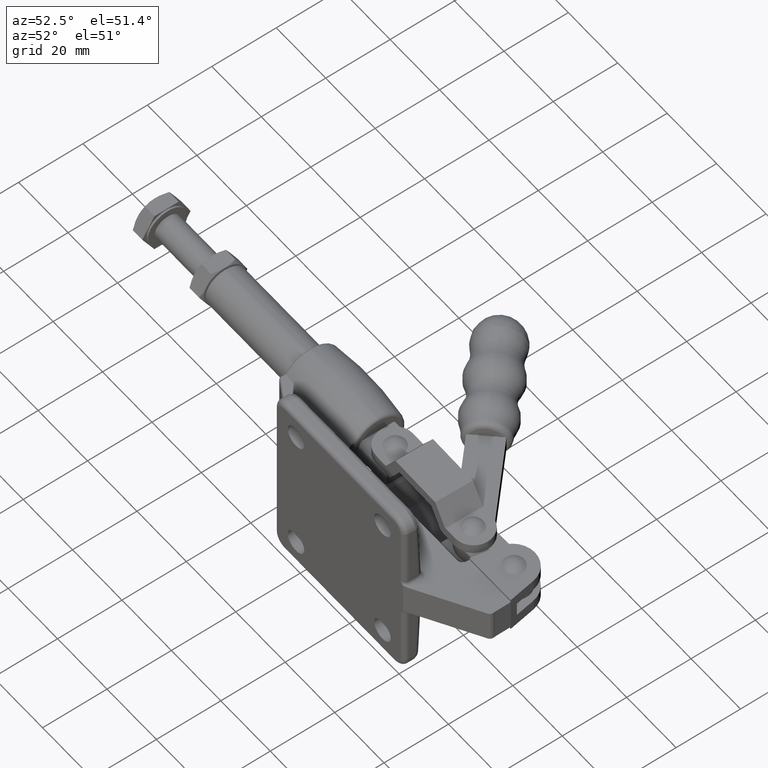
[diagram: clean part render]
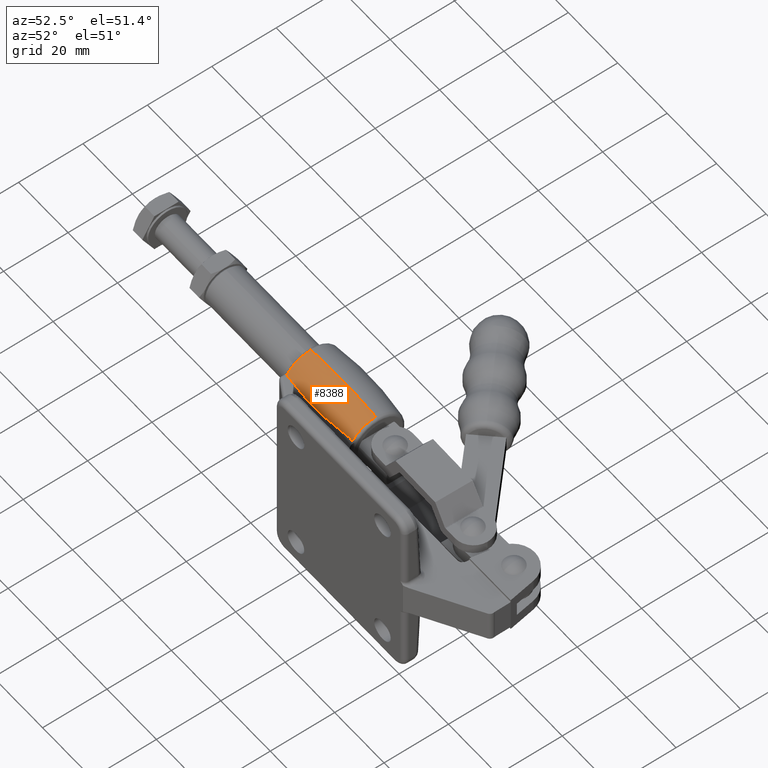
[diagram: same view with one face highlighted and labeled with its STEP entity id]
A machine part, auxiliary view. The second image highlights one B-rep face of the part: STEP entity #8388.
In plain terms, the highlighted toroidal blend (fillet) surface has major radius 88.7704 mm and minor (blend) radius 98.5 mm.
Its self-contained STEP definition (entity closure, byte-faithful):
#109 = CARTESIAN_POINT ( 'NONE',  ( -62.45293712422170500, 25.40000000000009100, 8.658596408788014300 ) ) ;
#165 = EDGE_CURVE ( 'NONE', #2297, #4744, #2657, .T. ) ;
#386 = CARTESIAN_POINT ( 'NONE',  ( -84.49775669716214600, 17.30667740680014100, 4.900000000000118500 ) ) ;
#387 = DIRECTION ( 'NONE',  ( 0.0000000000000000000, 0.0000000000000000000, -1.000000000000000000 ) ) ;
#417 = EDGE_LOOP ( 'NONE', ( #6102, #5233, #7738, #9531, #7642, #4483 ) ) ;
#619 = EDGE_CURVE ( 'NONE', #4744, #7416, #5003, .T. ) ;
#740 = DIRECTION ( 'NONE',  ( -1.000000000000000000, 0.0000000000000000000, 0.0000000000000000000 ) ) ;
#946 = VERTEX_POINT ( 'NONE', #3553 ) ;
#1133 = CARTESIAN_POINT ( 'NONE',  ( -66.00464659144114400, 17.68025265934020500, 4.900000000000118500 ) ) ;
#1161 = CARTESIAN_POINT ( 'NONE',  ( -88.60000000000020700, 17.80694003602905400, 4.900000000000119400 ) ) ;
#1257 = EDGE_CURVE ( 'NONE', #2297, #946, #4550, .T. ) ;
#1279 = CARTESIAN_POINT ( 'NONE',  ( -88.63975539190462900, 17.81258127420639400, 4.900000000000170000 ) ) ;
#1442 = DIRECTION ( 'NONE',  ( -1.000000000000000000, 0.0000000000000000000, 0.0000000000000000000 ) ) ;
#1816 = AXIS2_PLACEMENT_3D ( 'NONE', #2902, #7851, #387 ) ;
#2297 = VERTEX_POINT ( 'NONE', #4044 ) ;
#2617 = CARTESIAN_POINT ( 'NONE',  ( -62.96546490074217700, 18.00000000000000700, 4.639170850208137700 ) ) ;
#2632 = CARTESIAN_POINT ( 'NONE',  ( -68.02987524972044800, 17.43967929843386200, 4.900000000000117600 ) ) ;
#2657 = CIRCLE ( 'NONE', #4915, 8.658596408787921900 ) ;
#2806 = EDGE_CURVE ( 'NONE', #946, #4126, #4678, .T. ) ;
#2902 = CARTESIAN_POINT ( 'NONE',  ( -76.93863038838921400, 25.40000000000009100, -88.77042745297970300 ) ) ;
#3113 = DIRECTION ( 'NONE',  ( -1.000000000000000000, 0.0000000000000000000, 0.0000000000000000000 ) ) ;
#3301 = CARTESIAN_POINT ( 'NONE',  ( -63.99365595569698700, 18.00000000000000700, 4.900000000000119400 ) ) ;
#3358 = CIRCLE ( 'NONE', #4815, 9.022510358537305200 ) ;
#3380 = CARTESIAN_POINT ( 'NONE',  ( -63.47906055812428900, 18.00000000000000000, 4.773749305226592000 ) ) ;
#3390 = CARTESIAN_POINT ( 'NONE',  ( -72.11054077988649200, 17.12544940754015600, 4.900000000000120300 ) ) ;
#3509 = CARTESIAN_POINT ( 'NONE',  ( -88.67982188263897600, 17.81675682464417700, 4.897614136720157800 ) ) ;
#3553 = CARTESIAN_POINT ( 'NONE',  ( -63.99365595569698700, 18.00000000000000700, 4.900000000000119400 ) ) ;
#4044 = CARTESIAN_POINT ( 'NONE',  ( -62.45293712422170500, 18.00000000000201400, 4.495697028304231700 ) ) ;
#4126 = VERTEX_POINT ( 'NONE', #9511 ) ;
#4141 = CARTESIAN_POINT ( 'NONE',  ( -75.18399067522878500, 17.00611838970275300, 4.900000000000118500 ) ) ;
#4403 = B_SPLINE_CURVE_WITH_KNOTS ( 'NONE', 3,
 ( #8706, #3509, #1279, #6522 ),
 .UNSPECIFIED., .F., .F.,
 ( 4, 4 ),
 ( 0.0000000000000000000, 0.0001204609180723921200 ),
 .UNSPECIFIED. ) ;
#4483 = ORIENTED_EDGE ( 'NONE', *, *, #1257, .F. ) ;
#4550 = B_SPLINE_CURVE_WITH_KNOTS ( 'NONE', 3,
 ( #5542, #8220, #2617, #3380, #6355, #7100 ),
 .UNSPECIFIED., .F., .F.,
 ( 4, 2, 4 ),
 ( 0.008595698450605886500, 0.009399287032505554800, 0.01020287561440522300 ),
 .UNSPECIFIED. ) ;
#4678 = B_SPLINE_CURVE_WITH_KNOTS ( 'NONE', 3,
 ( #3301, #1133, #2632, #7850, #3390, #8587, #4141, #9328, #4910, #386, #5662, #1161 ),
 .UNSPECIFIED., .F., .F.,
 ( 4, 2, 2, 2, 2, 4 ),
 ( 0.1193302356728853900, 0.1255279190293825400, 0.1286267607076311000, 0.1317256023858796600, 0.1379232857423767800, 0.1441209690988738700 ),
 .UNSPECIFIED. ) ;
#4744 = VERTEX_POINT ( 'NONE', #109 ) ;
#4815 = AXIS2_PLACEMENT_3D ( 'NONE', #5245, #740, #5992 ) ;
#4910 = CARTESIAN_POINT ( 'NONE',  ( -80.37198244727459000, 17.03830809773745300, 4.900000000000120300 ) ) ;
#4915 = AXIS2_PLACEMENT_3D ( 'NONE', #6685, #1442, #5931 ) ;
#5003 = CIRCLE ( 'NONE', #1816, 98.50000000000221700 ) ;
#5233 = ORIENTED_EDGE ( 'NONE', *, *, #619, .T. ) ;
#5245 = CARTESIAN_POINT ( 'NONE',  ( -88.71960293708666300, 25.40000000000009100, 0.0000000000000000000 ) ) ;
#5501 = FACE_OUTER_BOUND ( 'NONE', #417, .T. ) ;
#5542 = CARTESIAN_POINT ( 'NONE',  ( -62.45293712422170500, 18.00000000000201400, 4.495697028304231700 ) ) ;
#5593 = CARTESIAN_POINT ( 'NONE',  ( -88.71960293708666300, 17.81936757587393000, 4.892821805481993600 ) ) ;
#5662 = CARTESIAN_POINT ( 'NONE',  ( -86.55297170730399600, 17.51646939538296300, 4.900000000000118500 ) ) ;
#5931 = DIRECTION ( 'NONE',  ( 0.0000000000000000000, 0.0000000000000000000, 1.000000000000000000 ) ) ;
#5992 = DIRECTION ( 'NONE',  ( 0.0000000000000000000, 0.0000000000000000000, 1.000000000000000000 ) ) ;
#6102 = ORIENTED_EDGE ( 'NONE', *, *, #165, .T. ) ;
#6355 = CARTESIAN_POINT ( 'NONE',  ( -63.73620161520200600, 18.00000000000000400, 4.838179466210036100 ) ) ;
#6522 = CARTESIAN_POINT ( 'NONE',  ( -88.60000000000020700, 17.80694003602905400, 4.900000000000119400 ) ) ;
#6685 = CARTESIAN_POINT ( 'NONE',  ( -62.45293712422170500, 25.40000000000009100, 0.0000000000000000000 ) ) ;
#6979 = VERTEX_POINT ( 'NONE', #5593 ) ;
#7100 = CARTESIAN_POINT ( 'NONE',  ( -63.99365595569698700, 18.00000000000000700, 4.900000000000119400 ) ) ;
#7124 = EDGE_CURVE ( 'NONE', #6979, #4126, #4403, .T. ) ;
#7256 = EDGE_CURVE ( 'NONE', #6979, #7416, #3358, .T. ) ;
#7416 = VERTEX_POINT ( 'NONE', #7659 ) ;
#7468 = TOROIDAL_SURFACE ( 'NONE', #8180, -88.77042745297970300, 98.50000000000221700 ) ;
#7577 = CARTESIAN_POINT ( 'NONE',  ( -76.93863038838921400, 25.40000000000009100, 0.0000000000000000000 ) ) ;
#7642 = ORIENTED_EDGE ( 'NONE', *, *, #2806, .F. ) ;
#7659 = CARTESIAN_POINT ( 'NONE',  ( -88.71960293708666300, 25.40000000000009100, 9.022510358537410000 ) ) ;
#7738 = ORIENTED_EDGE ( 'NONE', *, *, #7256, .F. ) ;
#7850 = CARTESIAN_POINT ( 'NONE',  ( -71.08771636386011000, 17.19002369408064400, 4.900000000000119400 ) ) ;
#7851 = DIRECTION ( 'NONE',  ( 0.0000000000000000000, -1.000000000000000000, 0.0000000000000000000 ) ) ;
#8180 = AXIS2_PLACEMENT_3D ( 'NONE', #7577, #3113, #9185 ) ;
#8220 = CARTESIAN_POINT ( 'NONE',  ( -62.70901009890511800, 18.00000000000000400, 4.569024234925343800 ) ) ;
#8388 = ADVANCED_FACE ( 'NONE', ( #5501 ), #7468, .T. ) ;
#8587 = CARTESIAN_POINT ( 'NONE',  ( -74.16208773471977600, 17.03347433393123800, 4.900000000000118500 ) ) ;
#8706 = CARTESIAN_POINT ( 'NONE',  ( -88.71960293708666300, 17.81936757587393000, 4.892821805481993600 ) ) ;
#9185 = DIRECTION ( 'NONE',  ( 0.0000000000000000000, 0.0000000000000000000, 1.000000000000000000 ) ) ;
#9328 = CARTESIAN_POINT ( 'NONE',  ( -78.30140565216574100, 16.97990378225467700, 4.900000000000120300 ) ) ;
#9511 = CARTESIAN_POINT ( 'NONE',  ( -88.60000000000020700, 17.80694003602905400, 4.900000000000119400 ) ) ;
#9531 = ORIENTED_EDGE ( 'NONE', *, *, #7124, .T. ) ;